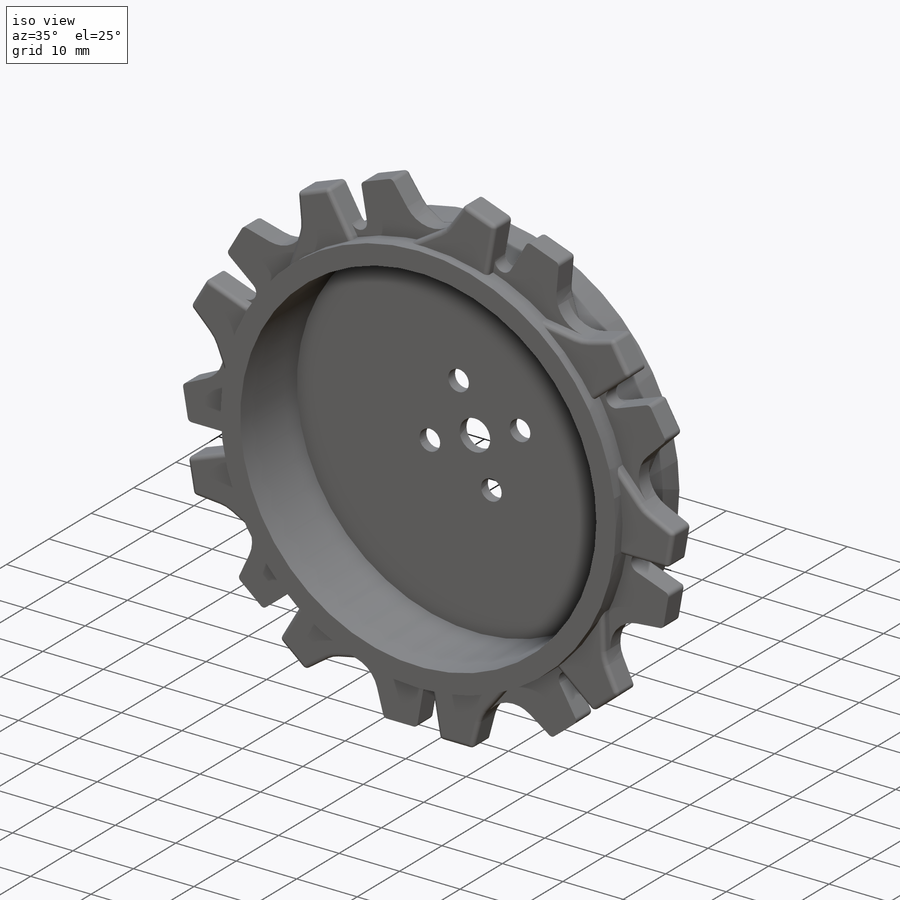
[diagram: iso view]
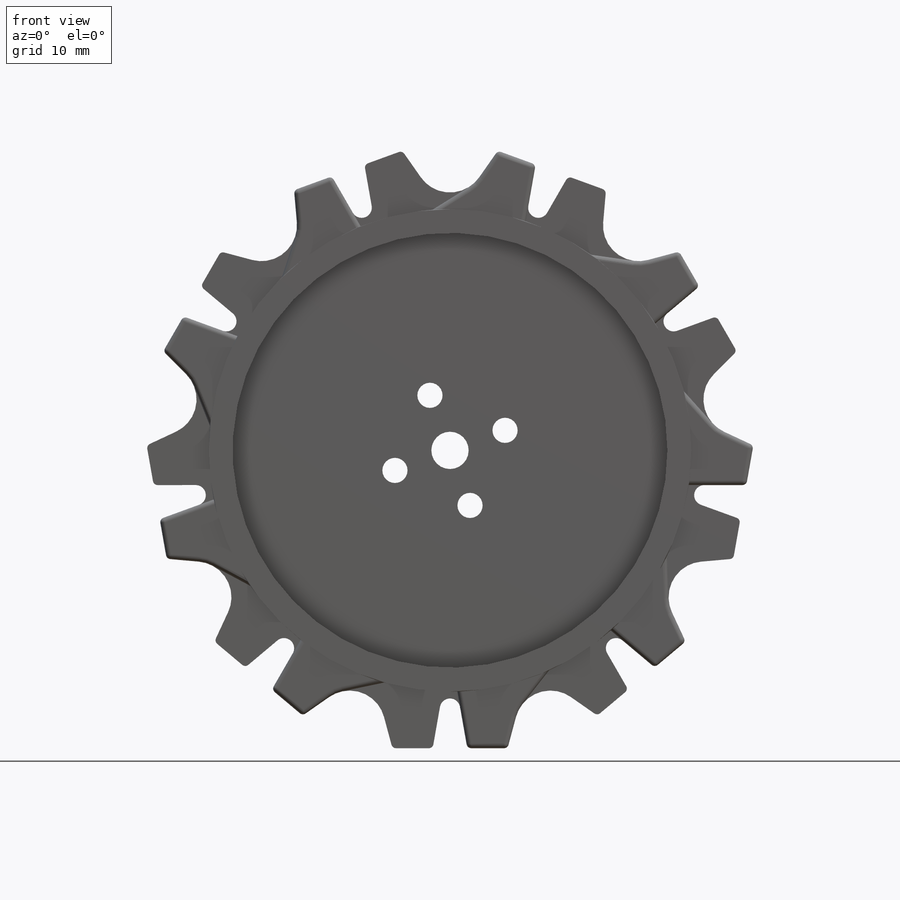
[diagram: front view]
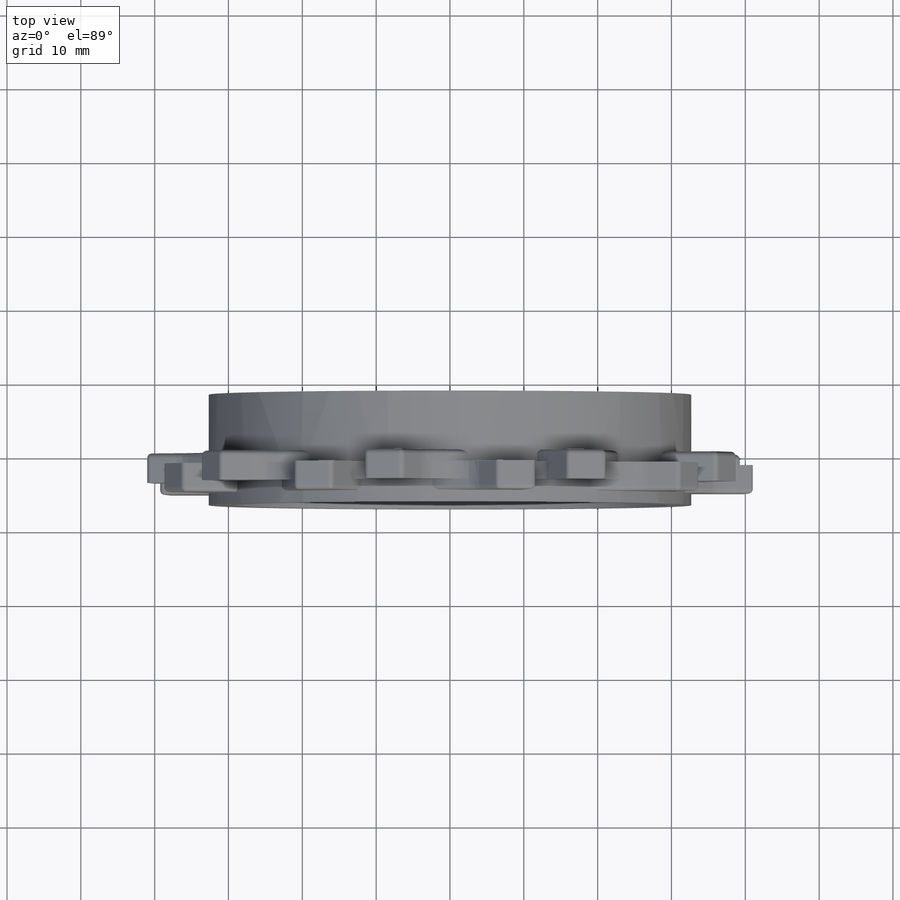
[diagram: top view]
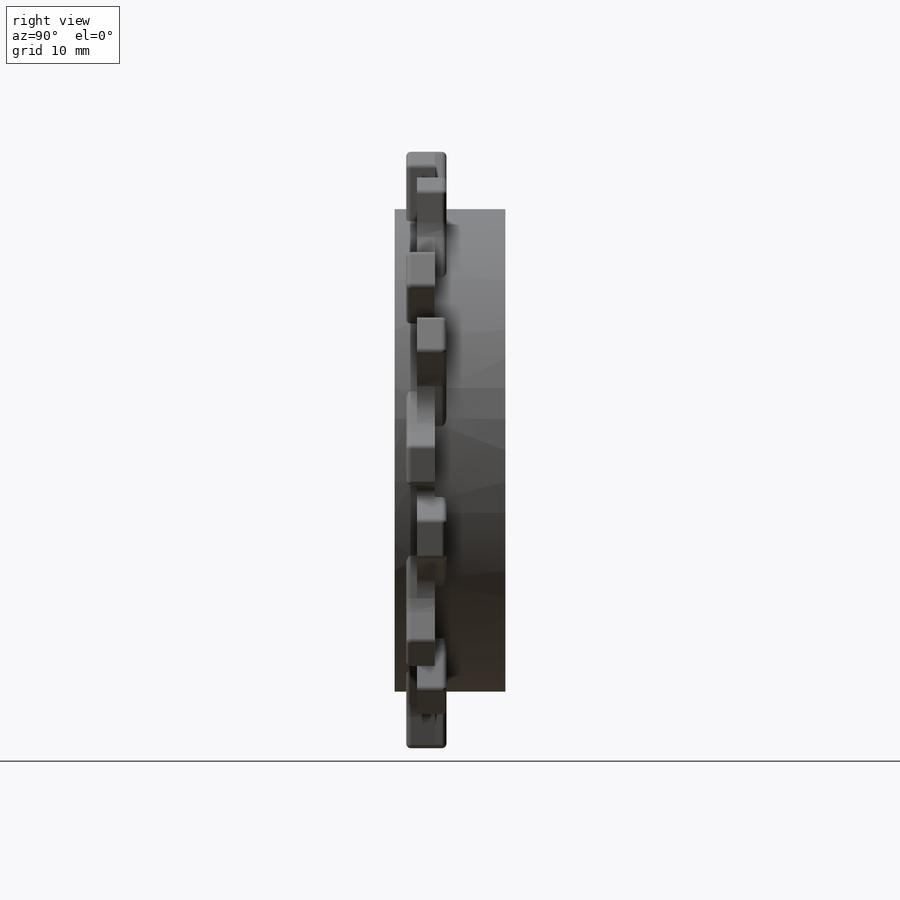
[diagram: right view]
SOLIDWORKS PART (.sldprt)
format: sldprt  version: not decoded by parser v0  size: 1,038,336 bytes
history: native  units: mm
features: sketch x6, extrude x4, fillet x2, cut_extrude x2, material x1, plane x1 (+13 scaffold rows collapsed)
feature tree (29):
  scaffold x13  (default folders/planes/origin — collapsed)
  material  "Material <not specified>"
  sketch  "Sketch1"  dims[c1.D19=0.64mm c1.D20=4.83mm c1.D1=~2.40447mm c1.D2=~32.578049mm c1.D3=~10.558514mm c1.D4=~30.917301mm c2.D3=~90.227763mm c2.D4=~77.958832mm c2.D5=3.96mm c2.D6=37.0mm c2.D7=~6.470404mm c2.D8=~40.576396mm c2.D9=~11.596614mm c2.D10=~38.709843mm c2.D11=~10.535464mm c2.D12=32.7mm c2.D13=2.56mm c2.D14=35.66mm c2.D15=~3.374206mm c2.D16=~36.16546mm c2.D17=~15.229466mm c2.D18=~31.868216mm c2.D19=~6.012724mm c2.D21=9.0]
  extrude  "Boss-Extrude3"  Depth=3.9878mm
  sketch  "Sketch2"  dims[D1=65.35mm]
  extrude  "Boss-Extrude4"  Depth=3.03mm
  plane  "Plane1"  Offset=5.446mm
  sketch  "Sketch3"  dims[c1.D10=0.64mm c1.D18=4.83mm c1.D1=~2.40447mm c1.D2=90.0mm c1.D3=~32.578049mm c1.D4=~2.556439mm c1.D5=~3.961421mm c1.D6=~6.470404mm c1.D7=~11.596614mm c1.D8=~10.535464mm c1.D9=~15.229466mm c2.D10=~35.663795mm c2.D11=~36.99419mm c2.D12=~40.576396mm c2.D13=~38.709843mm c2.D14=~32.696529mm c2.D15=~31.868216mm c2.D4=~3.394887mm c2.D5=~36.18532mm c3.D11=~6.188674mm c3.D16=~40.174155mm c3.D17=~6.931855mm c3.D8=~10.239669mm]
  extrude  "Boss-Extrude5"  Depth=3.878mm
  fillet  "Fillet1"  Radius=0.64mm
  fillet  "Fillet2"  Radius=4.83mm
  sketch  "Sketch4"  dims[c1.D1=~70.158159mm c1.D3=2.8mm c2.D1=1.38mm c2.D6=~31.712625mm c2.D2=~56.263345mm c3.D2=20.0deg c3.D3=~11.964206mm c3.D4=~0.151202mm c3.D5=~0.26203mm c3.D6=~0.306231mm c3.D7=~0.05404mm c4.D4=~10.591751mm c4.D5=~13.112947mm c4.D2=~32.871387mm c4.D6=~7.682114mm c4.D7=~2.097818mm c4.D8=~23.945878mm c5.D7=~9.687465mm c5.D8=~11.990521mm c5.D9=9.0]
  extrude  "Boss-Extrude6"  [1 undecoded]
  sketch  "Sketch5"  dims[D1=58.878mm]
  cut_extrude  "Cut-Extrude1"  Depth=13.3772mm
  sketch  "Sketch7"  dims[c1.D1=5.053mm c1.D3=15.87mm c1.D4=3.41mm c1.D6=3.41mm c1.D2=20.0mm c1.D5=20.0mm c2.D5=20.0deg]
  cut_extrude  "Cut-Extrude2"  [1 undecoded]
decode coverage: 12 of 14 modeling features carry decoded parameters
note: ~ marks probable driven/reference dimensions
note: 2 parameter values undecoded
note: suppression state not decoded; provenance and decode notes live in map.json
